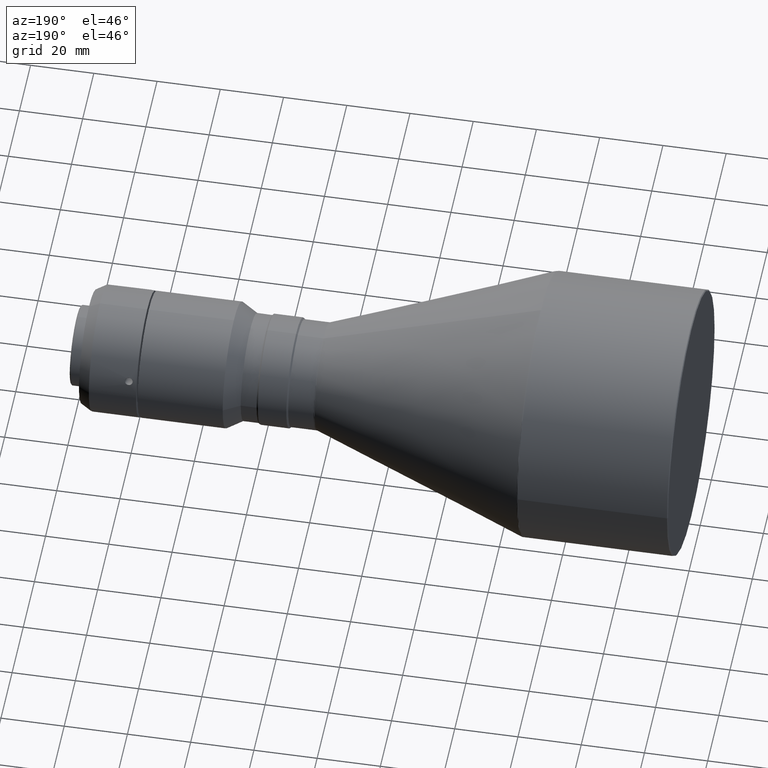
[diagram: clean part render]
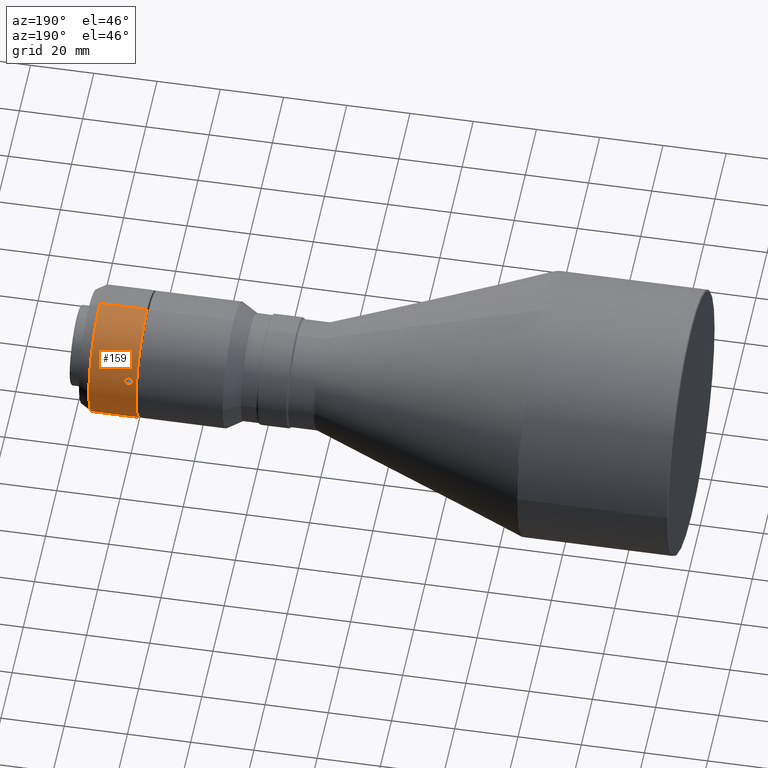
[diagram: same view with one face highlighted and labeled with its STEP entity id]
A machine part, auxiliary view. The second image highlights one B-rep face of the part: STEP entity #159.
In plain terms, the highlighted cylindrical surface (partial cylindrical patch) has radius 20 mm, axis along (-1, 0, 0).
Its self-contained STEP definition (entity closure, byte-faithful):
#13 = EDGE_CURVE ( 'NONE', #218, #1484, #347, .T. ) ;
#16 = LINE ( 'NONE', #1055, #1188 ) ;
#21 = LINE ( 'NONE', #244, #959 ) ;
#29 = CARTESIAN_POINT ( 'NONE',  ( 76.40082316289191100, 19.14782064931130300, 5.777047704143368100 ) ) ;
#31 = CARTESIAN_POINT ( 'NONE',  ( 76.39890184537917200, 18.64834863410458300, 7.228606416406472100 ) ) ;
#35 = CARTESIAN_POINT ( 'NONE',  ( 76.14988798133975900, 18.85857925558448400, 6.661875028812533000 ) ) ;
#85 = CARTESIAN_POINT ( 'NONE',  ( 78.64988738812499500, 18.85800562103679200, 6.663498663281071500 ) ) ;
#99 = FACE_BOUND ( 'NONE', #1011, .T. ) ;
#149 = CARTESIAN_POINT ( 'NONE',  ( 76.63137736257797900, 19.21320734203023400, 5.555715923829783500 ) ) ;
#159 = ADVANCED_FACE ( 'NONE', ( #99, #1359 ), #1441, .T. ) ;
#167 = EDGE_CURVE ( 'NONE', #943, #864, #822, .T. ) ;
#190 = DIRECTION ( 'NONE',  ( 0.0000000000000000000, 0.0000000000000000000, 1.000000000000000000 ) ) ;
#218 = VERTEX_POINT ( 'NONE', #683 ) ;
#223 = EDGE_CURVE ( 'NONE', #1484, #218, #1076, .T. ) ;
#224 = AXIS2_PLACEMENT_3D ( 'NONE', #1159, #405, #190 ) ;
#244 = CARTESIAN_POINT ( 'NONE',  ( 89.83589838500000700, 2.449293598294706500E-015, -20.00000000000000000 ) ) ;
#292 = CARTESIAN_POINT ( 'NONE',  ( 89.83589838500000700, 2.449293598294706500E-015, -20.00000000000000000 ) ) ;
#318 = ORIENTED_EDGE ( 'NONE', *, *, #1086, .F. ) ;
#347 = B_SPLINE_CURVE_WITH_KNOTS ( 'NONE', 3,
 ( #496, #1139, #1257, #1390, #149, #29, #1005, #1002, #515, #35, #892, #886, #31, #775, #1000, #1009, #766, #381 ),
 .UNSPECIFIED., .F., .F.,
 ( 4, 2, 2, 2, 2, 2, 2, 2, 4 ),
 ( 4.671683660921229500E-012, 0.0004885244560183028200, 0.0009770489073649220200, 0.001465573358711541300, 0.001954097810058160400, 0.002442622261404779500, 0.002931146712751399100, 0.003419671164098018200, 0.003908195615444637700 ),
 .UNSPECIFIED. ) ;
#381 = CARTESIAN_POINT ( 'NONE',  ( 77.40000000000000600, 18.46760464713380000, 7.677732646892705400 ) ) ;
#392 = ORIENTED_EDGE ( 'NONE', *, *, #481, .T. ) ;
#405 = DIRECTION ( 'NONE',  ( -1.000000000000000000, 0.0000000000000000000, 0.0000000000000000000 ) ) ;
#419 = DIRECTION ( 'NONE',  ( 0.0000000000000000000, 0.0000000000000000000, 1.000000000000000000 ) ) ;
#423 = CARTESIAN_POINT ( 'NONE',  ( 74.90000000000002000, 2.449293598294706500E-015, -20.00000000000000000 ) ) ;
#433 = CARTESIAN_POINT ( 'NONE',  ( 78.49268763014670500, 19.10717018596923100, 5.910919473390841900 ) ) ;
#441 = CARTESIAN_POINT ( 'NONE',  ( 78.65011201895396200, 18.96415019202388000, 6.355123754339029300 ) ) ;
#446 = CARTESIAN_POINT ( 'NONE',  ( 78.03042012236228700, 19.23854037089184400, 5.466490974253782800 ) ) ;
#461 = AXIS2_PLACEMENT_3D ( 'NONE', #530, #1284, #656 ) ;
#481 = EDGE_CURVE ( 'NONE', #764, #864, #21, .T. ) ;
#496 = CARTESIAN_POINT ( 'NONE',  ( 77.40000000000000600, 19.28116678616864400, 5.313812883791381800 ) ) ;
#515 = CARTESIAN_POINT ( 'NONE',  ( 76.15011261157822300, 18.96469727629663300, 6.353490981901557300 ) ) ;
#530 = CARTESIAN_POINT ( 'NONE',  ( 74.90000000000002000, 0.0000000000000000000, 0.0000000000000000000 ) ) ;
#572 = ORIENTED_EDGE ( 'NONE', *, *, #1084, .F. ) ;
#580 = CARTESIAN_POINT ( 'NONE',  ( 74.90000000000002000, 0.0000000000000000000, 20.00000000000000000 ) ) ;
#581 = CARTESIAN_POINT ( 'NONE',  ( 77.56518920242980600, 18.46760464724915400, 7.677732646615238500 ) ) ;
#619 = DIRECTION ( 'NONE',  ( -1.000000000000000000, 0.0000000000000000000, 0.0000000000000000000 ) ) ;
#656 = DIRECTION ( 'NONE',  ( 0.0000000000000000000, 0.0000000000000000000, 1.000000000000000000 ) ) ;
#660 = DIRECTION ( 'NONE',  ( 1.000000000000000000, -0.0000000000000000000, -0.0000000000000000000 ) ) ;
#683 = CARTESIAN_POINT ( 'NONE',  ( 77.40000000000000600, 19.28116678616864400, 5.313812883791381800 ) ) ;
#700 = CARTESIAN_POINT ( 'NONE',  ( 77.40000000000000600, 18.46760464713380000, 7.677732646892705400 ) ) ;
#704 = CARTESIAN_POINT ( 'NONE',  ( 78.02999211226384100, 18.52787935043499000, 7.531376758332204900 ) ) ;
#710 = CARTESIAN_POINT ( 'NONE',  ( 77.72727973322548700, 18.48018540154372500, 7.647659552097768400 ) ) ;
#764 = VERTEX_POINT ( 'NONE', #292 ) ;
#766 = CARTESIAN_POINT ( 'NONE',  ( 77.23481096355885700, 18.46760464701844700, 7.677732647170175000 ) ) ;
#775 = CARTESIAN_POINT ( 'NONE',  ( 76.63207187323385500, 18.56260077416728600, 7.446039887168677900 ) ) ;
#804 = DIRECTION ( 'NONE',  ( -1.000000000000000000, 0.0000000000000000000, 0.0000000000000000000 ) ) ;
#822 = CIRCLE ( 'NONE', #461, 20.00000000000000000 ) ;
#864 = VERTEX_POINT ( 'NONE', #423 ) ;
#886 = CARTESIAN_POINT ( 'NONE',  ( 76.30731237139525500, 18.69793387969163600, 7.100013392045353200 ) ) ;
#892 = CARTESIAN_POINT ( 'NONE',  ( 76.18221312585009700, 18.80327812602447700, 6.816131839387597100 ) ) ;
#934 = CARTESIAN_POINT ( 'NONE',  ( 78.16792812979865300, 19.21345351874572300, 5.554895263227855700 ) ) ;
#943 = VERTEX_POINT ( 'NONE', #580 ) ;
#946 = CARTESIAN_POINT ( 'NONE',  ( 78.39917683629364800, 18.64758675479700800, 7.230547974836830400 ) ) ;
#948 = CARTESIAN_POINT ( 'NONE',  ( 78.16862263653098400, 18.56291179205996400, 7.445241540359783800 ) ) ;
#959 = VECTOR ( 'NONE', #619, 1000.000000000000000 ) ;
#960 = VERTEX_POINT ( 'NONE', #1323 ) ;
#991 = CIRCLE ( 'NONE', #1112, 20.00000000000000000 ) ;
#1000 = CARTESIAN_POINT ( 'NONE',  ( 76.76957988109441500, 18.52796816690550200, 7.531158926759484700 ) ) ;
#1002 = CARTESIAN_POINT ( 'NONE',  ( 76.18297923128679400, 19.01622079150841000, 6.197255349604997600 ) ) ;
#1005 = CARTESIAN_POINT ( 'NONE',  ( 76.30769549812295300, 19.10728516874167900, 5.910522865194626400 ) ) ;
#1009 = CARTESIAN_POINT ( 'NONE',  ( 77.07240129151072900, 18.48021432872929300, 7.647590309254370700 ) ) ;
#1011 = EDGE_LOOP ( 'NONE', ( #1066, #1582 ) ) ;
#1047 = CARTESIAN_POINT ( 'NONE',  ( 78.61778687477531900, 19.01549511668912400, 6.199505383792694800 ) ) ;
#1055 = CARTESIAN_POINT ( 'NONE',  ( 89.83589838500000700, 0.0000000000000000000, 20.00000000000000000 ) ) ;
#1066 = ORIENTED_EDGE ( 'NONE', *, *, #223, .F. ) ;
#1068 = CARTESIAN_POINT ( 'NONE',  ( 78.49230450107161500, 18.69778042765387100, 7.100396759250701400 ) ) ;
#1076 = B_SPLINE_CURVE_WITH_KNOTS ( 'NONE', 3,
 ( #700, #581, #710, #704, #948, #946, #1068, #1183, #85, #441, #1047, #433, #1442, #934, #446, #1319, #1570, #1572 ),
 .UNSPECIFIED., .F., .F.,
 ( 4, 2, 2, 2, 2, 2, 2, 2, 4 ),
 ( 0.003908195615444637700, 0.004396720544257576300, 0.004885245473070514900, 0.005373770401883452700, 0.005862295330696391300, 0.006350820259509329900, 0.006839345188322267600, 0.007327870117135206300, 0.007816395045948144900 ),
 .UNSPECIFIED. ) ;
#1084 = EDGE_CURVE ( 'NONE', #764, #960, #991, .T. ) ;
#1086 = EDGE_CURVE ( 'NONE', #960, #943, #16, .T. ) ;
#1112 = AXIS2_PLACEMENT_3D ( 'NONE', #1401, #660, #419 ) ;
#1139 = CARTESIAN_POINT ( 'NONE',  ( 77.23481080401855100, 19.28116678793968900, 5.313812882363802000 ) ) ;
#1159 = CARTESIAN_POINT ( 'NONE',  ( 89.83589838500000700, 0.0000000000000000000, 0.0000000000000000000 ) ) ;
#1183 = CARTESIAN_POINT ( 'NONE',  ( 78.61702076819941000, 18.80246537931443400, 6.818351906378563100 ) ) ;
#1188 = VECTOR ( 'NONE', #804, 1000.000000000000000 ) ;
#1224 = ORIENTED_EDGE ( 'NONE', *, *, #167, .F. ) ;
#1228 = EDGE_LOOP ( 'NONE', ( #572, #392, #1224, #318 ) ) ;
#1257 = CARTESIAN_POINT ( 'NONE',  ( 77.07272026612916700, 19.27257524098886400, 5.345258897439691700 ) ) ;
#1284 = DIRECTION ( 'NONE',  ( -1.000000000000000000, 0.0000000000000000000, 0.0000000000000000000 ) ) ;
#1319 = CARTESIAN_POINT ( 'NONE',  ( 77.72759871233870400, 19.27255542747705200, 5.345331277746805800 ) ) ;
#1323 = CARTESIAN_POINT ( 'NONE',  ( 89.83589838500000700, 0.0000000000000000000, 20.00000000000000000 ) ) ;
#1359 = FACE_OUTER_BOUND ( 'NONE', #1228, .T. ) ;
#1390 = CARTESIAN_POINT ( 'NONE',  ( 76.77000788706611400, 19.23860442490110500, 5.466264618769471900 ) ) ;
#1401 = CARTESIAN_POINT ( 'NONE',  ( 89.83589838500000700, 0.0000000000000000000, 0.0000000000000000000 ) ) ;
#1441 = CYLINDRICAL_SURFACE ( 'NONE', #224, 20.00000000000000000 ) ;
#1442 = CARTESIAN_POINT ( 'NONE',  ( 78.40109815646015100, 19.14722628119154300, 5.779046914438535700 ) ) ;
#1484 = VERTEX_POINT ( 'NONE', #1524 ) ;
#1524 = CARTESIAN_POINT ( 'NONE',  ( 77.40000000000000600, 18.46760464713380000, 7.677732646892705400 ) ) ;
#1570 = CARTESIAN_POINT ( 'NONE',  ( 77.56518936648355100, 19.28116678762123500, 5.313812883519307000 ) ) ;
#1572 = CARTESIAN_POINT ( 'NONE',  ( 77.40000000000000600, 19.28116678616864400, 5.313812883791381800 ) ) ;
#1582 = ORIENTED_EDGE ( 'NONE', *, *, #13, .F. ) ;